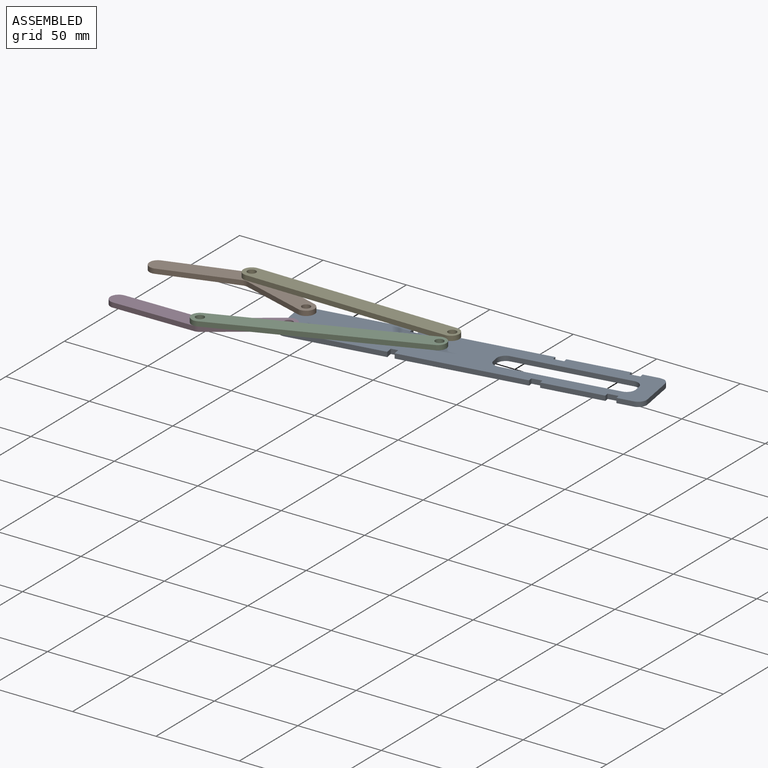
[diagram: assembled view]
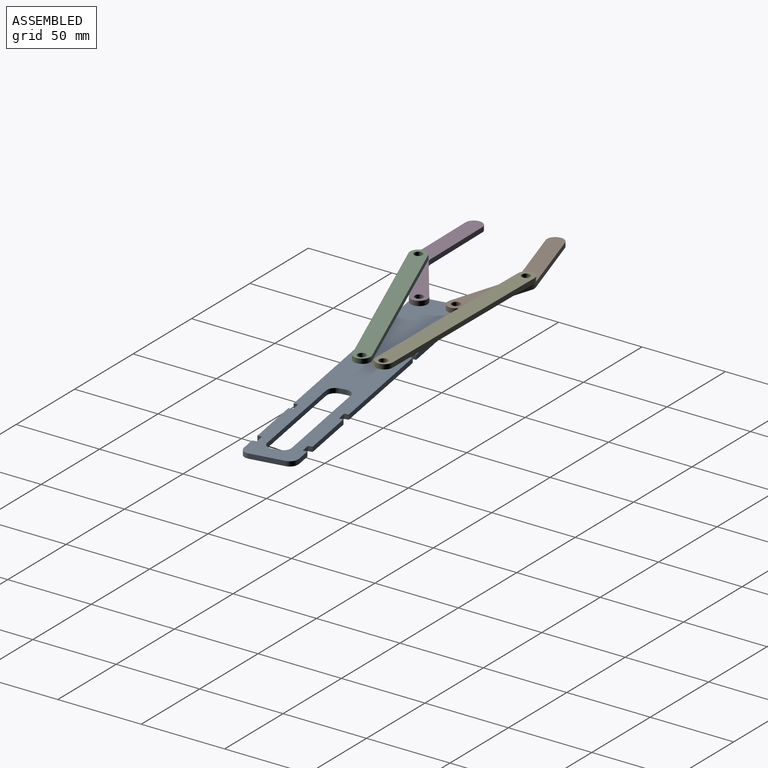
[diagram: assembled view, second angle]
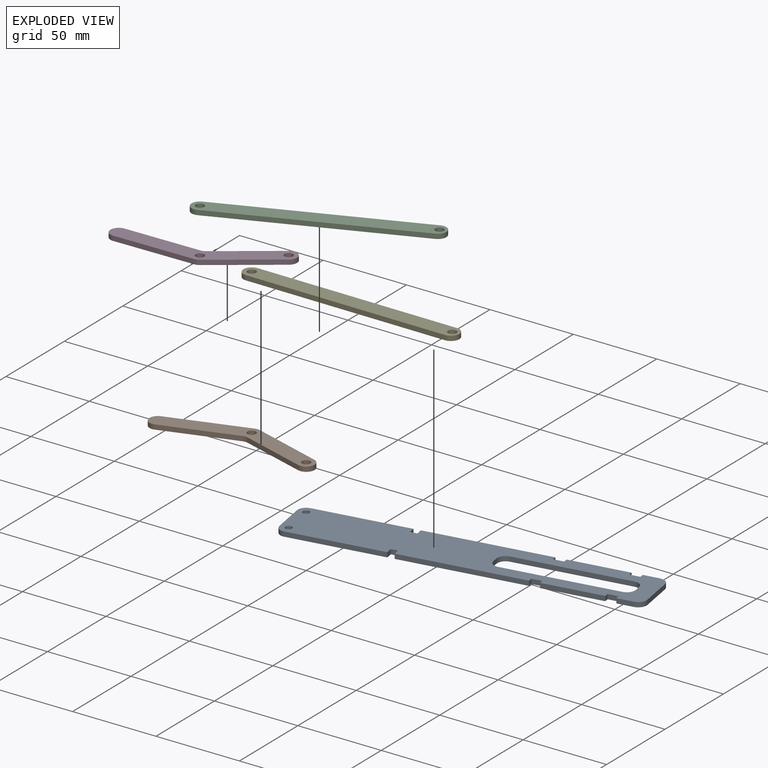
[diagram: exploded view]
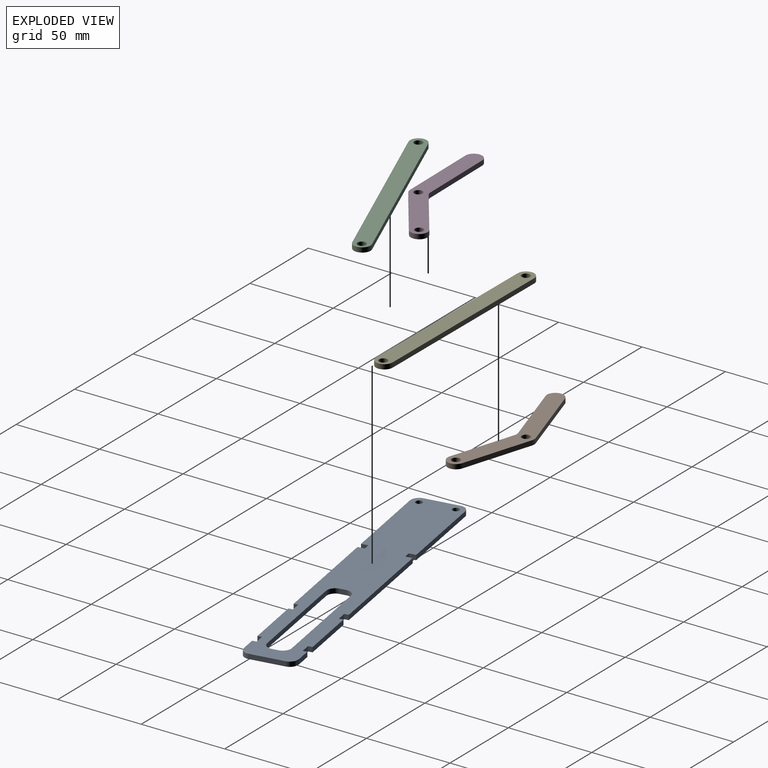
[diagram: exploded view, second angle]
ASSEMBLY  parts=5 mates=4
PART A: 45 faces, bbox 200x30x2.9 mm
  f0: plane 55.96x2.85mm, normal (0,-1,0), area 159.5mm2, adj f2,f3,f21,f42
  f1: plane 55.96x2.85mm, normal (0,1,0), area 159.5mm2, adj f2,f3,f14,f39
  f2: plane 200x30mm, normal (0,0,1), area 4840.5mm2, adj f0,f1,f4,f5,f6,f7,f8,f9
  f3: plane 200x30mm, normal (0,0,-1), area 4840.5mm2, adj f0,f1,f4,f5,f6,f7,f8,f9
  f4: plane 35.42x2.85mm, normal (0,-1,0), area 100.9mm2, adj f2,f3,f28,f32
  f5: plane 35.42x2.85mm, normal (0,1,0), area 100.9mm2, adj f2,f3,f26,f35
  f6: plane 73.1x2.85mm, normal (0,-1,0), area 208.3mm2, adj f2,f3,f27,f43
  f7: plane 73.1x2.85mm, normal (0,1,0), area 208.3mm2, adj f2,f3,f24,f41
  f8: plane 9.52x2.85mm, normal (0,-1,0), area 27.1mm2, adj f2,f3,f9,f30
  f9: cylinder r=5mm len=5mm, axis (0,0,-1), area 22.4mm2, adj f2,f3,f8,f10
  f10: plane 20x2.85mm, normal (1,0,0), area 57mm2, adj f2,f3,f9,f11
  f11: cylinder r=5mm len=4.33mm, axis (0,0,-1), area 14.9mm2, adj f2,f3,f10,f12
  f12: plane 2.85x2.5mm, normal (0.26,0.97,0), area 7.4mm2, adj f2,f3,f11,f13
  f13: plane 9.52x2.85mm, normal (0,1,0), area 27.1mm2, adj f2,f3,f12,f34
  f14: cylinder r=5mm len=5mm, axis (0,0,-1), area 22.4mm2, adj f1,f2,f3,f15
  f15: plane 20x2.85mm, normal (-1,0,0), area 57mm2, adj f2,f3,f14,f21
  f16: cylinder r=5mm len=5mm, axis (0,0,-1), area 22.4mm2, adj f2,f3,f17,f20
  f17: plane 67.5x2.85mm, normal (0,1,0), area 192.4mm2, adj f2,f3,f16,f38
  f18: plane 67.5x2.85mm, normal (0,-1,0), area 192.4mm2, adj f2,f3,f19,f37
  f19: cylinder r=5mm len=5mm, axis (0,0,-1), area 22.4mm2, adj f2,f3,f18,f20
  f20: plane 3.45x2.85mm, normal (-1,0,0), area 9.8mm2, adj f2,f3,f16,f19
  f21: cylinder r=5mm len=5mm, axis (0,0,-1), area 22.4mm2, adj f0,f2,f3,f15
  f22: cylinder r=2mm len=4mm, axis (0,0,-1), area 35.8mm2, adj f2,f3
  f23: cylinder r=2mm len=4mm, axis (0,0,-1), area 35.8mm2, adj f2,f3
  f24: plane 2.85x2.5mm, normal (1,0,0), area 7.1mm2, adj f2,f3,f7,f25
  f25: plane 6x2.85mm, normal (0,1,0), area 17.1mm2, adj f2,f3,f24,f26
  f26: plane 2.85x2.5mm, normal (-1,0,0), area 7.1mm2, adj f2,f3,f5,f25
  f27: plane 2.85x2.5mm, normal (1,0,0), area 7.1mm2, adj f2,f3,f6,f29
  f28: plane 2.85x2.5mm, normal (-1,0,0), area 7.1mm2, adj f2,f3,f4,f29
  f29: plane 6x2.85mm, normal (0,-1,0), area 17.1mm2, adj f2,f3,f27,f28
  f30: plane 2.85x2.5mm, normal (-1,0,0), area 7.1mm2, adj f2,f3,f8,f31
  f31: plane 6x2.85mm, normal (0,-1,0), area 17.1mm2, adj f2,f3,f30,f32
  f32: plane 2.85x2.5mm, normal (1,0,0), area 7.1mm2, adj f2,f3,f4,f31
  f33: plane 6x2.85mm, normal (0,1,0), area 17.1mm2, adj f2,f3,f34,f35
  f34: plane 2.85x2.5mm, normal (-1,0,0), area 7.1mm2, adj f2,f3,f13,f33
  f35: plane 2.85x2.5mm, normal (1,0,0), area 7.1mm2, adj f2,f3,f5,f33
  f36: plane 3.45x2.85mm, normal (1,0,0), area 9.8mm2, adj f2,f3,f37,f38
  f37: cylinder r=5mm len=5mm, axis (0,0,1), area 22.4mm2, adj f2,f3,f18,f36
  f38: cylinder r=5mm len=5mm, axis (0,0,-1), area 22.4mm2, adj f2,f3,f17,f36
  f39: plane 4x2.85mm, normal (1,0,0), area 11.4mm2, adj f1,f2,f3,f40
  f40: plane 4x2.85mm, normal (0,1,0), area 11.4mm2, adj f2,f3,f39,f41
  f41: plane 4x2.85mm, normal (-1,0,0), area 11.4mm2, adj f2,f3,f7,f40
  f42: plane 4x2.85mm, normal (1,0,0), area 11.4mm2, adj f0,f2,f3,f44
  f43: plane 4x2.85mm, normal (-1,0,0), area 11.4mm2, adj f2,f3,f6,f44
  f44: plane 4x2.85mm, normal (0,-1,0), area 11.4mm2, adj f2,f3,f42,f43
PART B: 12 faces, bbox 37.5x93.2x2.9 mm
  f0: plane 37.39x25.96mm, normal (0.82,0.57,0), area 129.7mm2, adj f1,f7,f8,f9
  f1: cylinder r=5mm len=2.85mm, axis (0,0,-1), area 8.6mm2, adj f0,f2,f8,f9
  f2: plane 40.43x2.85mm, normal (1,0,0), area 115.2mm2, adj f1,f3,f8,f9
  f3: cylinder r=5mm len=10mm, axis (0,0,-1), area 44.8mm2, adj f2,f4,f8,f9
  f4: plane 43.55x2.85mm, normal (-1,0,0), area 124.1mm2, adj f3,f5,f8,f9
  f5: cylinder r=5mm len=2.85mm, axis (0,0,-1), area 8.6mm2, adj f4,f6,f8,f9
  f6: plane 39.83x27.65mm, normal (-0.82,-0.57,0), area 138.2mm2, adj f5,f7,f8,f9
  f7: cylinder r=5.01mm len=8.97mm, axis (0,0,-1), area 42.9mm2, adj f0,f6,f8,f9
  f8: plane 93.18x37.52mm, normal (0,0,1), area 957.1mm2, adj f0,f1,f2,f3,f4,f5,f6,f7
  f9: plane 93.18x37.52mm, normal (0,0,-1), area 957.1mm2, adj f0,f1,f2,f3,f4,f5,f6,f7
  f10: cylinder r=2.5mm len=5mm, axis (0,0,1), area 44.8mm2, adj f8,f9
  f11: cylinder r=2.5mm len=5mm, axis (0,0,1), area 44.8mm2, adj f8,f9
PART C: 8 faces, bbox 10x130x2.9 mm
  f0: plane 120x2.85mm, normal (-1,0,0), area 342mm2, adj f2,f3,f6,f7
  f1: plane 120x2.85mm, normal (1,0,0), area 342mm2, adj f2,f3,f6,f7
  f2: plane 130x10mm, normal (0,0,1), area 1239.3mm2, adj f0,f1,f4,f5,f6,f7
  f3: plane 130x10mm, normal (0,0,-1), area 1239.3mm2, adj f0,f1,f4,f5,f6,f7
  f4: cylinder r=2.5mm len=5mm, axis (0,0,1), area 44.8mm2, adj f2,f3
  f5: cylinder r=2.5mm len=5mm, axis (0,0,1), area 44.8mm2, adj f2,f3
  f6: cylinder r=5mm len=10mm, axis (0,0,-1), area 44.8mm2, adj f0,f1,f2,f3
  f7: cylinder r=5mm len=10mm, axis (0,0,-1), area 44.8mm2, adj f0,f1,f2,f3
PART D: same geometry as B
PART E: same geometry as C
PLACE A rot(axis=(0,0,1),9.6deg) t=(-75.26,61.27,-11.07)mm
PLACE B rot(axis=(0,0,-1),107.1deg) t=(-141.58,37.73,-8.22)mm
PLACE C rot(axis=(0,0,-1),68.3deg) t=(-103.24,69.28,-5.37)mm
PLACE D rot(axis=(0.46,0.89,0),180deg) t=(-154.93,121.38,-5.37)mm
PLACE E rot(axis=(0,0,-1),90.4deg) t=(-108.9,103.37,-5.37)mm
MATE revolute B.f3 <-> A.f14  axis (0,0,-1) through (-129.88,92.65,-8.22)mm
MATE revolute E.f4 <-> B.f5  axis (0,0,-1) through (-171.5,105.48,-5.37)mm
MATE revolute D.f3 <-> A.f21  axis (0,0,-1) through (-126.55,72.92,-8.22)mm
MATE revolute C.f4 <-> D.f5  axis (0,0,-1) through (-162.02,47.65,-5.37)mm
